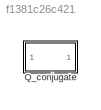
MODEL slx_f1381c26c421
KIND library
CONFIG AbsTol = auto
CONFIG FixedStep = auto
CONFIG MaxStep = auto
CONFIG MinStep = auto
CONFIG RelTol = 1e-3
CONFIG SampleTimeConstraint = Unconstrained
CONFIG Solver = VariableStepAuto
CONFIG SolverMode = Auto
CONFIG SolverName = VariableStepAuto
CONFIG StartTime = 0.0
CONFIG StopTime = 10.0
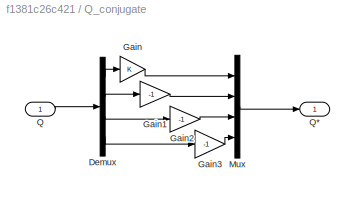
BLOCK [SubSystem] Q_conjugate
  Ports = [1, 1]
  RequestExecContextInheritance = off
  Variant = off
BLOCK [Demux] Q_conjugate/Demux
  DisplayOption = bar
  Ports = [1, 4]
BLOCK [Gain] Q_conjugate/Gain
  OutDataTypeStr = Inherit: Inherit via internal rule
  ParamDataTypeStr = Inherit: Inherit via internal rule
  SaturateOnIntegerOverflow = off
BLOCK [Gain] Q_conjugate/Gain1
  Gain = -1
  OutDataTypeStr = Inherit: Inherit via internal rule
  ParamDataTypeStr = Inherit: Inherit via internal rule
  SaturateOnIntegerOverflow = off
BLOCK [Gain] Q_conjugate/Gain2
  Gain = -1
  OutDataTypeStr = Inherit: Inherit via internal rule
  ParamDataTypeStr = Inherit: Inherit via internal rule
  SaturateOnIntegerOverflow = off
BLOCK [Gain] Q_conjugate/Gain3
  Gain = -1
  OutDataTypeStr = Inherit: Inherit via internal rule
  ParamDataTypeStr = Inherit: Inherit via internal rule
  SaturateOnIntegerOverflow = off
BLOCK [Mux] Q_conjugate/Mux
  DisplayOption = bar
  Ports = [4, 1]
BLOCK [Inport] Q_conjugate/Q
  IconDisplay = Port number
BLOCK [Outport] Q_conjugate/Q*
  IconDisplay = Port number
LINE Q_conjugate/Demux:1 -> Q_conjugate/Gain:1
LINE Q_conjugate/Demux:2 -> Q_conjugate/Gain1:1
LINE Q_conjugate/Demux:3 -> Q_conjugate/Gain2:1
LINE Q_conjugate/Demux:4 -> Q_conjugate/Gain3:1
LINE Q_conjugate/Gain1:1 -> Q_conjugate/Mux:2
LINE Q_conjugate/Gain2:1 -> Q_conjugate/Mux:3
LINE Q_conjugate/Gain3:1 -> Q_conjugate/Mux:4
LINE Q_conjugate/Gain:1 -> Q_conjugate/Mux:1
LINE Q_conjugate/Mux:1 -> Q_conjugate/Q*:1
LINE Q_conjugate/Q:1 -> Q_conjugate/Demux:1
